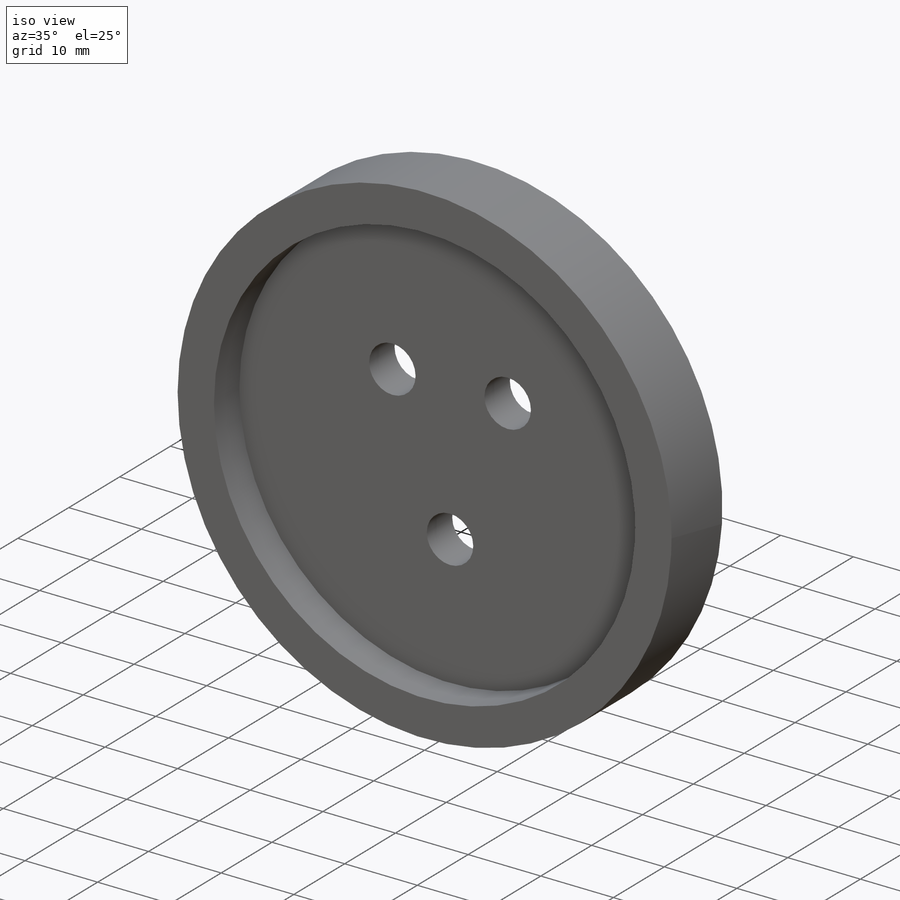
[diagram: iso view]
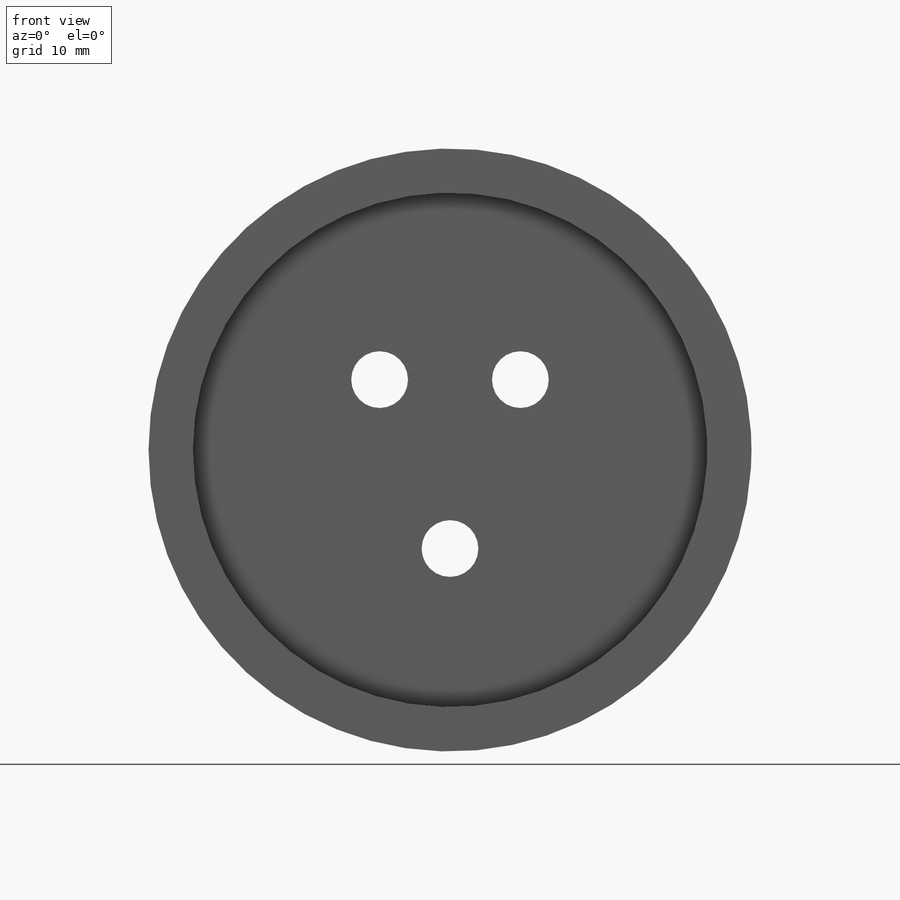
[diagram: front view]
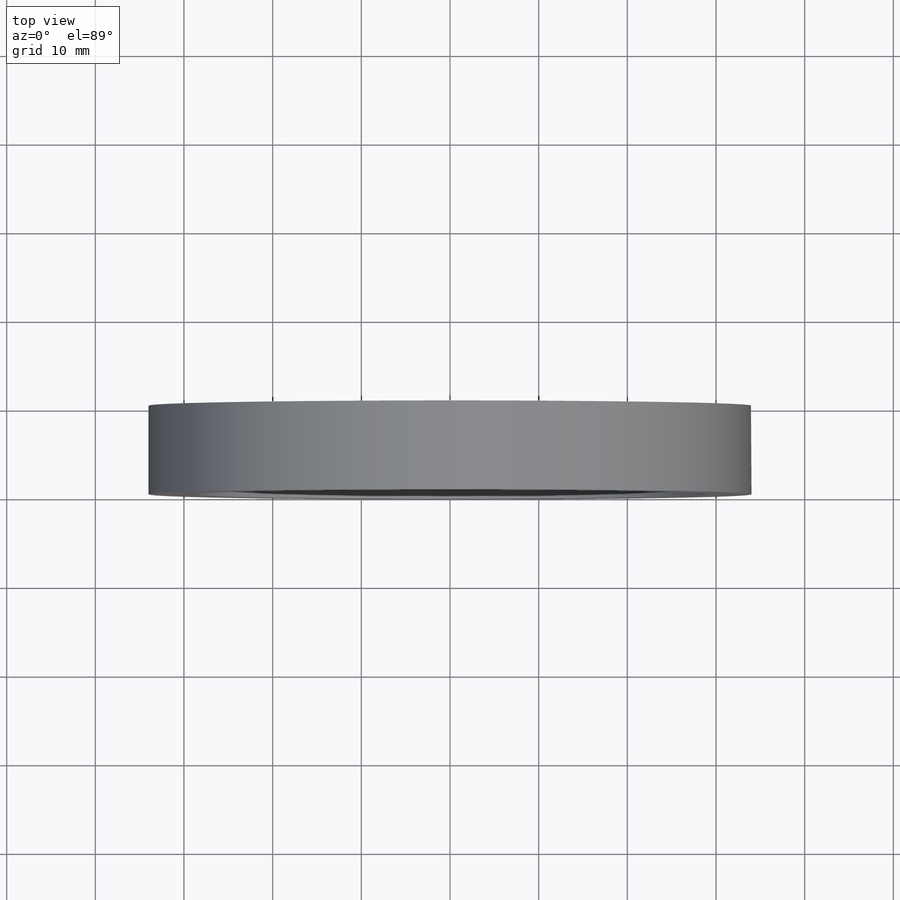
[diagram: top view]
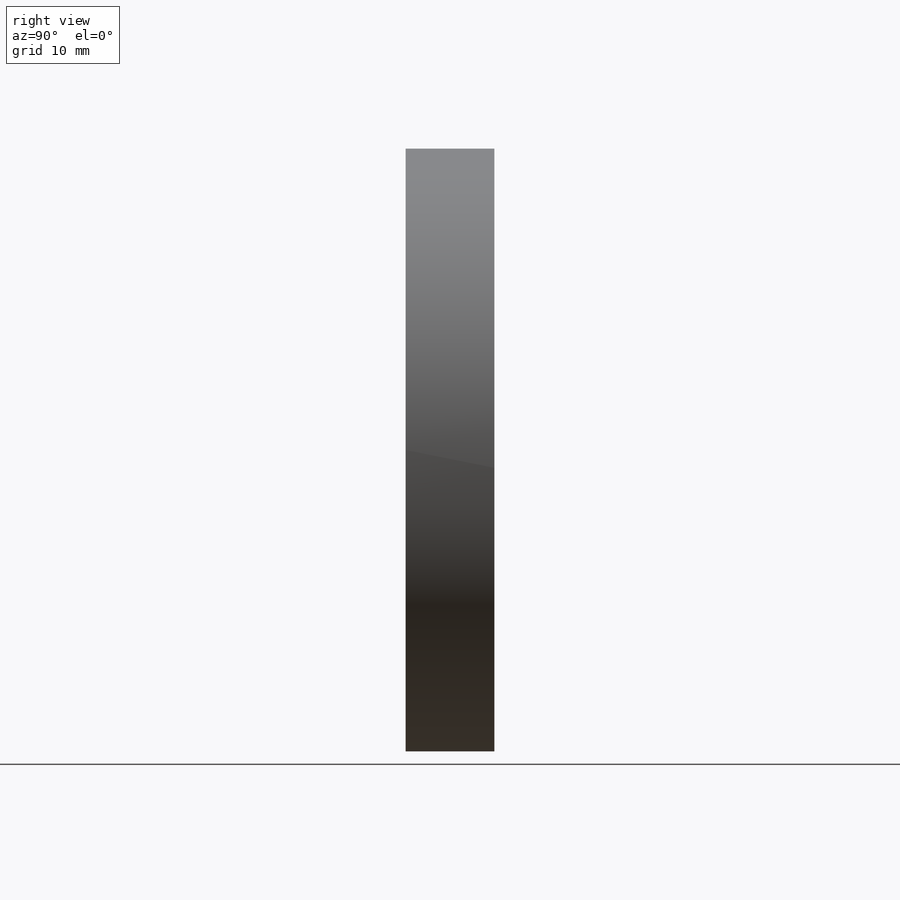
[diagram: right view]
SOLIDWORKS PART (.sldprt)
format: sldprt  version: not decoded by parser v0  size: 364,032 bytes
history: native  units: mm
features: sketch x5, extrude x4, material x1, cut_extrude x1 (+15 scaffold rows collapsed)
feature tree (26):
  scaffold x15  (default folders/planes/origin — collapsed)
  material  "Material <not specified>"
  sketch  "Sketch1"  dims[D1=23.75mm]
  extrude  "Extrude1"  Depth=4mm
  sketch  "Sketch2"  dims[D1=5.0mm]
  extrude  "Extrude2"  Depth=1mm
  sketch  "Sketch3"  dims[D1=3.7mm]
  cut_extrude  "Extrude3"  [1 undecoded]
  sketch  "Sketch4"  dims[D1=29.0mm]
  extrude  "Extrude4"  Depth=5mm
  sketch  "Sketch5"  dims[D1=28.575mm]
  extrude  "Extrude5"  Depth=5mm
decode coverage: 9 of 10 modeling features carry decoded parameters
note: 1 parameter value undecoded
note: suppression state not decoded; provenance and decode notes live in map.json
